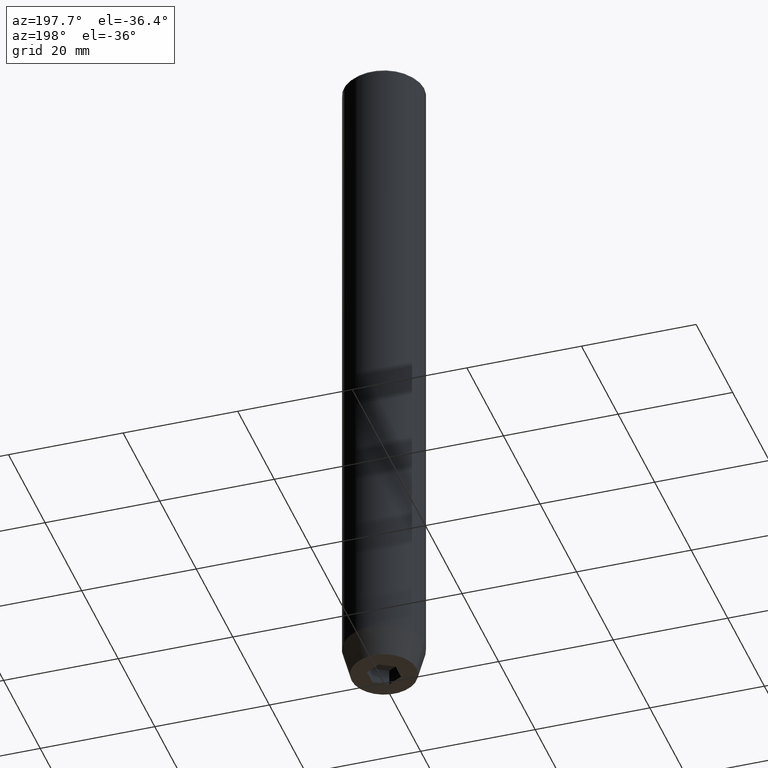
[diagram: clean part render]
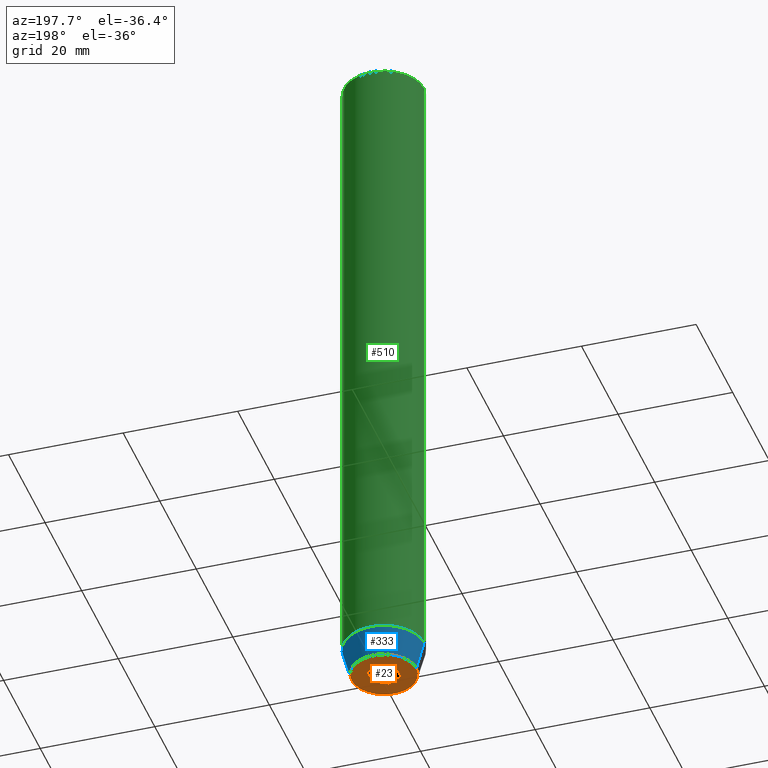
[diagram: same view with three faces highlighted in distinct colors, each labeled with its STEP entity id]
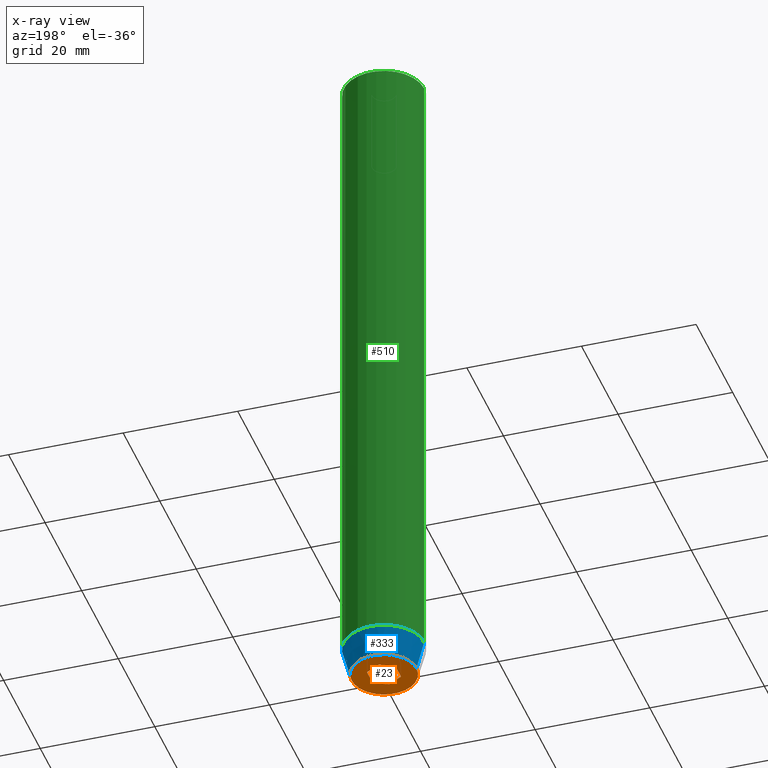
[diagram: x-ray of the same camera — body ghosted, the three highlighted faces saturated]
A machine part, auxiliary view with three faces highlighted in distinct colors.
The next image is the same camera in x-ray (body ghosted, the three faces saturated) — at least one of them is partly hidden behind the body in this view.
Their STEP definitions:

[orange] entity #23 — the highlighted planar face has unit normal (0, 0, -1).
#4 = CARTESIAN_POINT ( 'NONE',  ( -2.500000000000000444, 0.000000000000000000, -120.0000000000000000 ) ) ;
#9 = DIRECTION ( 'NONE',  ( 0.8660254037844385966, -0.5000000000000001110, 0.000000000000000000 ) ) ;
#17 = CARTESIAN_POINT ( 'NONE',  ( 5.660254037844382857, 0.000000000000000000, -120.0000000000000000 ) ) ;
#19 = CARTESIAN_POINT ( 'NONE',  ( 2.500000000000000000, -1.443375672974064106, -120.0000000000000000 ) ) ;
#23 = ADVANCED_FACE ( 'NONE', ( #542, #364 ), #551, .T. ) ;
#29 = ORIENTED_EDGE ( 'NONE', *, *, #481, .F. ) ;
#36 = VERTEX_POINT ( 'NONE', #515 ) ;
#55 = DIRECTION ( 'NONE',  ( 0.000000000000000000, 0.000000000000000000, -1.000000000000000000 ) ) ;
#61 = VECTOR ( 'NONE', #323, 1000.000000000000000 ) ;
#65 = EDGE_CURVE ( 'NONE', #217, #587, #562, .T. ) ;
#89 = VERTEX_POINT ( 'NONE', #17 ) ;
#98 = AXIS2_PLACEMENT_3D ( 'NONE', #243, #280, #425 ) ;
#107 = AXIS2_PLACEMENT_3D ( 'NONE', #464, #55, #497 ) ;
#117 = LINE ( 'NONE', #120, #524 ) ;
#120 = CARTESIAN_POINT ( 'NONE',  ( -1.250000000000000444, 2.165063509461097269, -120.0000000000000000 ) ) ;
#129 = DIRECTION ( 'NONE',  ( -0.8660254037844387076, -0.5000000000000001110, 0.000000000000000000 ) ) ;
#142 = EDGE_CURVE ( 'NONE', #36, #89, #554, .T. ) ;
#149 = CARTESIAN_POINT ( 'NONE',  ( -2.500000000000000444, -1.443375672974064328, -120.0000000000000000 ) ) ;
#152 = DIRECTION ( 'NONE',  ( 1.000000000000000000, 0.000000000000000000, 0.000000000000000000 ) ) ;
#159 = CARTESIAN_POINT ( 'NONE',  ( 0.000000000000000000, -2.886751345948128211, -120.0000000000000000 ) ) ;
#161 = CARTESIAN_POINT ( 'NONE',  ( 2.500000000000000000, 1.443375672974064328, -120.0000000000000000 ) ) ;
#170 = LINE ( 'NONE', #403, #555 ) ;
#196 = ORIENTED_EDGE ( 'NONE', *, *, #395, .F. ) ;
#210 = AXIS2_PLACEMENT_3D ( 'NONE', #474, #428, #152 ) ;
#211 = ORIENTED_EDGE ( 'NONE', *, *, #336, .F. ) ;
#217 = VERTEX_POINT ( 'NONE', #159 ) ;
#227 = LINE ( 'NONE', #4, #61 ) ;
#229 = ORIENTED_EDGE ( 'NONE', *, *, #505, .F. ) ;
#231 = DIRECTION ( 'NONE',  ( 0.000000000000000000, -1.000000000000000000, 0.000000000000000000 ) ) ;
#242 = VERTEX_POINT ( 'NONE', #19 ) ;
#243 = CARTESIAN_POINT ( 'NONE',  ( 0.000000000000000000, 0.000000000000000000, -120.0000000000000000 ) ) ;
#262 = ORIENTED_EDGE ( 'NONE', *, *, #439, .F. ) ;
#280 = DIRECTION ( 'NONE',  ( -0.000000000000000000, -0.000000000000000000, 1.000000000000000000 ) ) ;
#284 = DIRECTION ( 'NONE',  ( -0.8660254037844387076, 0.4999999999999998890, 0.000000000000000000 ) ) ;
#297 = ORIENTED_EDGE ( 'NONE', *, *, #142, .F. ) ;
#299 = VERTEX_POINT ( 'NONE', #346 ) ;
#300 = DIRECTION ( 'NONE',  ( 0.8660254037844385966, 0.5000000000000001110, 0.000000000000000000 ) ) ;
#315 = VECTOR ( 'NONE', #284, 1000.000000000000114 ) ;
#321 = LINE ( 'NONE', #361, #338 ) ;
#323 = DIRECTION ( 'NONE',  ( 0.000000000000000000, 1.000000000000000000, 0.000000000000000000 ) ) ;
#325 = EDGE_LOOP ( 'NONE', ( #211, #262, #540, #196, #229, #29 ) ) ;
#329 = CIRCLE ( 'NONE', #98, 5.660254037844382857 ) ;
#336 = EDGE_CURVE ( 'NONE', #299, #354, #117, .T. ) ;
#338 = VECTOR ( 'NONE', #231, 1000.000000000000000 ) ;
#346 = CARTESIAN_POINT ( 'NONE',  ( -2.500000000000000444, 1.443375672974064772, -120.0000000000000000 ) ) ;
#354 = VERTEX_POINT ( 'NONE', #356 ) ;
#356 = CARTESIAN_POINT ( 'NONE',  ( 0.000000000000000000, 2.886751345948129099, -120.0000000000000000 ) ) ;
#361 = CARTESIAN_POINT ( 'NONE',  ( 2.500000000000000000, 0.000000000000000000, -120.0000000000000000 ) ) ;
#364 = FACE_OUTER_BOUND ( 'NONE', #437, .T. ) ;
#395 = EDGE_CURVE ( 'NONE', #242, #217, #170, .T. ) ;
#403 = CARTESIAN_POINT ( 'NONE',  ( 1.249999999999999778, -2.165063509461096380, -120.0000000000000000 ) ) ;
#404 = VERTEX_POINT ( 'NONE', #161 ) ;
#425 = DIRECTION ( 'NONE',  ( 1.000000000000000000, 0.000000000000000000, 0.000000000000000000 ) ) ;
#428 = DIRECTION ( 'NONE',  ( -0.000000000000000000, -0.000000000000000000, 1.000000000000000000 ) ) ;
#437 = EDGE_LOOP ( 'NONE', ( #548, #297 ) ) ;
#439 = EDGE_CURVE ( 'NONE', #587, #299, #227, .T. ) ;
#453 = LINE ( 'NONE', #552, #485 ) ;
#464 = CARTESIAN_POINT ( 'NONE',  ( 0.000000000000000000, 5.660254037844382857, -120.0000000000000000 ) ) ;
#474 = CARTESIAN_POINT ( 'NONE',  ( 0.000000000000000000, 0.000000000000000000, -120.0000000000000000 ) ) ;
#476 = CARTESIAN_POINT ( 'NONE',  ( -1.249999999999999556, -2.165063509461096825, -120.0000000000000000 ) ) ;
#481 = EDGE_CURVE ( 'NONE', #354, #404, #453, .T. ) ;
#485 = VECTOR ( 'NONE', #9, 1000.000000000000000 ) ;
#497 = DIRECTION ( 'NONE',  ( -1.000000000000000000, 0.000000000000000000, -0.000000000000000000 ) ) ;
#505 = EDGE_CURVE ( 'NONE', #404, #242, #321, .T. ) ;
#515 = CARTESIAN_POINT ( 'NONE',  ( -5.660254037844382857, 7.752169791919238770E-16, -120.0000000000000000 ) ) ;
#524 = VECTOR ( 'NONE', #300, 1000.000000000000000 ) ;
#540 = ORIENTED_EDGE ( 'NONE', *, *, #65, .F. ) ;
#542 = FACE_BOUND ( 'NONE', #325, .T. ) ;
#548 = ORIENTED_EDGE ( 'NONE', *, *, #560, .F. ) ;
#551 = PLANE ( 'NONE',  #107 ) ;
#552 = CARTESIAN_POINT ( 'NONE',  ( 1.250000000000000222, 2.165063509461096825, -120.0000000000000000 ) ) ;
#554 = CIRCLE ( 'NONE', #210, 5.660254037844382857 ) ;
#555 = VECTOR ( 'NONE', #129, 999.9999999999998863 ) ;
#560 = EDGE_CURVE ( 'NONE', #89, #36, #329, .T. ) ;
#562 = LINE ( 'NONE', #476, #315 ) ;
#587 = VERTEX_POINT ( 'NONE', #149 ) ;

[blue] entity #333 — the highlighted conical surface has half-angle 15 deg.
#6 = ORIENTED_EDGE ( 'NONE', *, *, #429, .F. ) ;
#17 = CARTESIAN_POINT ( 'NONE',  ( 5.660254037844382857, 0.000000000000000000, -120.0000000000000000 ) ) ;
#36 = VERTEX_POINT ( 'NONE', #515 ) ;
#38 = VERTEX_POINT ( 'NONE', #381 ) ;
#45 = DIRECTION ( 'NONE',  ( -0.2588190451025211836, 3.169619151431770488E-17, 0.9659258262890680902 ) ) ;
#76 = AXIS2_PLACEMENT_3D ( 'NONE', #188, #463, #501 ) ;
#89 = VERTEX_POINT ( 'NONE', #17 ) ;
#98 = AXIS2_PLACEMENT_3D ( 'NONE', #243, #280, #425 ) ;
#134 = CARTESIAN_POINT ( 'NONE',  ( -7.000000000000000000, 8.572527594031473190E-16, -114.9999999999999858 ) ) ;
#176 = LINE ( 'NONE', #134, #276 ) ;
#181 = CONICAL_SURFACE ( 'NONE', #384, 7.000000000000000000, 0.2617993877991499074 ) ;
#188 = CARTESIAN_POINT ( 'NONE',  ( 0.000000000000000000, 0.000000000000000000, -114.9999999999999858 ) ) ;
#243 = CARTESIAN_POINT ( 'NONE',  ( 0.000000000000000000, 0.000000000000000000, -120.0000000000000000 ) ) ;
#251 = EDGE_CURVE ( 'NONE', #89, #38, #343, .T. ) ;
#276 = VECTOR ( 'NONE', #45, 1000.000000000000114 ) ;
#280 = DIRECTION ( 'NONE',  ( -0.000000000000000000, -0.000000000000000000, 1.000000000000000000 ) ) ;
#301 = ORIENTED_EDGE ( 'NONE', *, *, #251, .F. ) ;
#317 = CIRCLE ( 'NONE', #76, 7.000000000000000000 ) ;
#329 = CIRCLE ( 'NONE', #98, 5.660254037844382857 ) ;
#333 = ADVANCED_FACE ( 'NONE', ( #526 ), #181, .T. ) ;
#343 = LINE ( 'NONE', #386, #413 ) ;
#349 = CARTESIAN_POINT ( 'NONE',  ( 0.000000000000000000, 0.000000000000000000, -114.9999999999999858 ) ) ;
#381 = CARTESIAN_POINT ( 'NONE',  ( 7.000000000000000000, 0.000000000000000000, -114.9999999999999858 ) ) ;
#384 = AXIS2_PLACEMENT_3D ( 'NONE', #349, #397, #493 ) ;
#386 = CARTESIAN_POINT ( 'NONE',  ( 7.000000000000000000, 0.000000000000000000, -114.9999999999999858 ) ) ;
#397 = DIRECTION ( 'NONE',  ( -0.000000000000000000, -0.000000000000000000, 1.000000000000000000 ) ) ;
#413 = VECTOR ( 'NONE', #566, 1000.000000000000114 ) ;
#425 = DIRECTION ( 'NONE',  ( 1.000000000000000000, 0.000000000000000000, 0.000000000000000000 ) ) ;
#429 = EDGE_CURVE ( 'NONE', #38, #516, #317, .T. ) ;
#443 = ORIENTED_EDGE ( 'NONE', *, *, #530, .T. ) ;
#463 = DIRECTION ( 'NONE',  ( -0.000000000000000000, -0.000000000000000000, 1.000000000000000000 ) ) ;
#480 = ORIENTED_EDGE ( 'NONE', *, *, #560, .T. ) ;
#493 = DIRECTION ( 'NONE',  ( 1.000000000000000000, 0.000000000000000000, 0.000000000000000000 ) ) ;
#501 = DIRECTION ( 'NONE',  ( 1.000000000000000000, 0.000000000000000000, 0.000000000000000000 ) ) ;
#515 = CARTESIAN_POINT ( 'NONE',  ( -5.660254037844382857, 7.752169791919238770E-16, -120.0000000000000000 ) ) ;
#516 = VERTEX_POINT ( 'NONE', #543 ) ;
#526 = FACE_OUTER_BOUND ( 'NONE', #577, .T. ) ;
#530 = EDGE_CURVE ( 'NONE', #36, #516, #176, .T. ) ;
#543 = CARTESIAN_POINT ( 'NONE',  ( -7.000000000000000000, 8.572527594031473190E-16, -114.9999999999999858 ) ) ;
#560 = EDGE_CURVE ( 'NONE', #89, #36, #329, .T. ) ;
#566 = DIRECTION ( 'NONE',  ( 0.2588190451025211836, 0.000000000000000000, 0.9659258262890680902 ) ) ;
#577 = EDGE_LOOP ( 'NONE', ( #480, #443, #6, #301 ) ) ;

[green] entity #510 — the highlighted cylindrical surface (partial cylindrical patch) has radius 7 mm, axis along (-0, -0, 1).
#10 = ORIENTED_EDGE ( 'NONE', *, *, #568, .T. ) ;
#21 = CARTESIAN_POINT ( 'NONE',  ( 0.000000000000000000, 0.000000000000000000, -0.4999999999999908962 ) ) ;
#38 = VERTEX_POINT ( 'NONE', #381 ) ;
#42 = DIRECTION ( 'NONE',  ( -0.000000000000000000, -0.000000000000000000, 1.000000000000000000 ) ) ;
#51 = VECTOR ( 'NONE', #522, 1000.000000000000000 ) ;
#76 = AXIS2_PLACEMENT_3D ( 'NONE', #188, #463, #501 ) ;
#93 = EDGE_CURVE ( 'NONE', #274, #389, #305, .T. ) ;
#109 = DIRECTION ( 'NONE',  ( -0.000000000000000000, -0.000000000000000000, 1.000000000000000000 ) ) ;
#111 = DIRECTION ( 'NONE',  ( 0.000000000000000000, 0.000000000000000000, -1.000000000000000000 ) ) ;
#138 = VECTOR ( 'NONE', #109, 1000.000000000000000 ) ;
#150 = CARTESIAN_POINT ( 'NONE',  ( -7.000000000000000000, 8.572527594031473190E-16, -0.4999999999999908962 ) ) ;
#188 = CARTESIAN_POINT ( 'NONE',  ( 0.000000000000000000, 0.000000000000000000, -114.9999999999999858 ) ) ;
#199 = DIRECTION ( 'NONE',  ( 1.000000000000000000, 0.000000000000000000, 0.000000000000000000 ) ) ;
#209 = CARTESIAN_POINT ( 'NONE',  ( 7.000000000000000000, 0.000000000000000000, -0.4999999999999908962 ) ) ;
#223 = DIRECTION ( 'NONE',  ( 1.000000000000000000, 0.000000000000000000, 0.000000000000000000 ) ) ;
#224 = ORIENTED_EDGE ( 'NONE', *, *, #429, .T. ) ;
#237 = EDGE_LOOP ( 'NONE', ( #224, #10, #483, #459 ) ) ;
#258 = EDGE_CURVE ( 'NONE', #38, #389, #523, .T. ) ;
#264 = CARTESIAN_POINT ( 'NONE',  ( 0.000000000000000000, 0.000000000000000000, 0.000000000000000000 ) ) ;
#274 = VERTEX_POINT ( 'NONE', #150 ) ;
#305 = CIRCLE ( 'NONE', #506, 7.000000000000000000 ) ;
#317 = CIRCLE ( 'NONE', #76, 7.000000000000000000 ) ;
#358 = AXIS2_PLACEMENT_3D ( 'NONE', #264, #42, #223 ) ;
#377 = LINE ( 'NONE', #567, #138 ) ;
#381 = CARTESIAN_POINT ( 'NONE',  ( 7.000000000000000000, 0.000000000000000000, -114.9999999999999858 ) ) ;
#389 = VERTEX_POINT ( 'NONE', #209 ) ;
#416 = CYLINDRICAL_SURFACE ( 'NONE', #358, 7.000000000000000000 ) ;
#424 = CARTESIAN_POINT ( 'NONE',  ( 7.000000000000000000, 0.000000000000000000, 0.000000000000000000 ) ) ;
#429 = EDGE_CURVE ( 'NONE', #38, #516, #317, .T. ) ;
#459 = ORIENTED_EDGE ( 'NONE', *, *, #258, .F. ) ;
#463 = DIRECTION ( 'NONE',  ( -0.000000000000000000, -0.000000000000000000, 1.000000000000000000 ) ) ;
#483 = ORIENTED_EDGE ( 'NONE', *, *, #93, .T. ) ;
#501 = DIRECTION ( 'NONE',  ( 1.000000000000000000, 0.000000000000000000, 0.000000000000000000 ) ) ;
#506 = AXIS2_PLACEMENT_3D ( 'NONE', #21, #111, #199 ) ;
#508 = FACE_OUTER_BOUND ( 'NONE', #237, .T. ) ;
#510 = ADVANCED_FACE ( 'NONE', ( #508 ), #416, .T. ) ;
#516 = VERTEX_POINT ( 'NONE', #543 ) ;
#522 = DIRECTION ( 'NONE',  ( -0.000000000000000000, -0.000000000000000000, 1.000000000000000000 ) ) ;
#523 = LINE ( 'NONE', #424, #51 ) ;
#543 = CARTESIAN_POINT ( 'NONE',  ( -7.000000000000000000, 8.572527594031473190E-16, -114.9999999999999858 ) ) ;
#567 = CARTESIAN_POINT ( 'NONE',  ( -7.000000000000000000, 8.572527594031473190E-16, 0.000000000000000000 ) ) ;
#568 = EDGE_CURVE ( 'NONE', #516, #274, #377, .T. ) ;